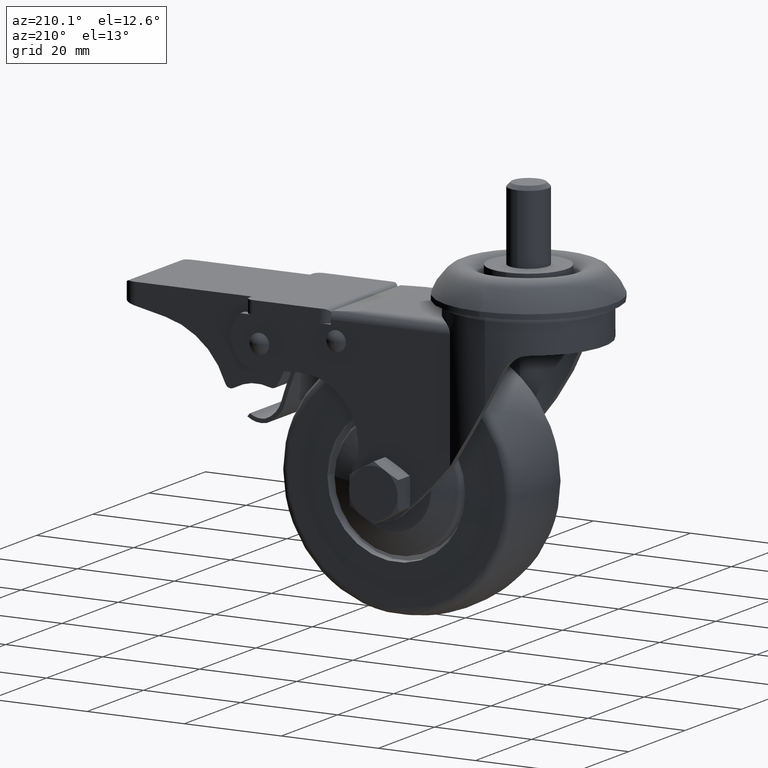
[diagram: clean part render]
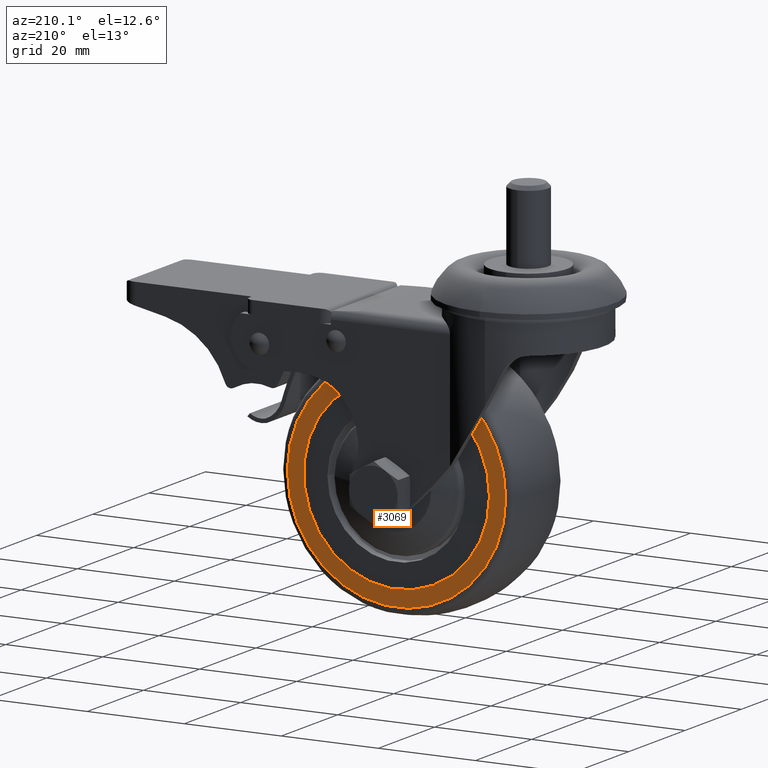
[diagram: same view with one face highlighted and labeled with its STEP entity id]
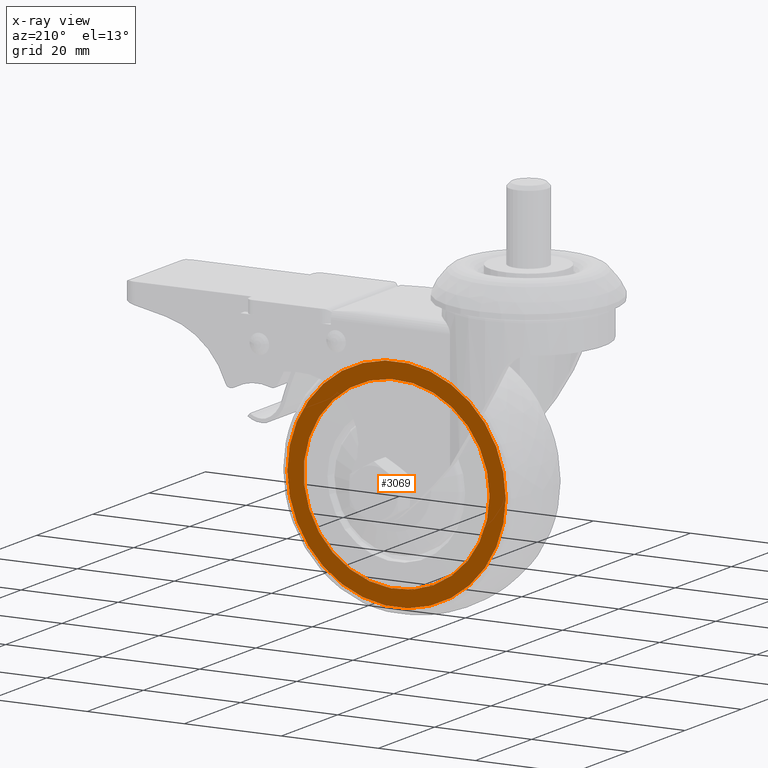
[diagram: x-ray of the same camera — body ghosted, the highlighted face saturated]
A machine part, auxiliary view. The second image highlights one B-rep face of the part: STEP entity #3069.
The next image is the same camera in x-ray: the body ghosted, the highlighted face saturated — about 0% of this face is hidden behind the body in this view.
In plain terms, the highlighted planar face has unit normal (-0.0001, 1, 0).
Its self-contained STEP definition (entity closure, byte-faithful):
#552=FACE_BOUND('',#1024,.T.);
#622=PLANE('',#3670);
#803=FACE_OUTER_BOUND('',#1023,.T.);
#1023=EDGE_LOOP('',(#2813));
#1024=EDGE_LOOP('',(#2814));
#1220=CIRCLE('',#3669,19.1499999999996);
#1221=CIRCLE('',#3671,22.495454169735);
#1547=VERTEX_POINT('',#5847);
#1548=VERTEX_POINT('',#5851);
#1969=EDGE_CURVE('',#1547,#1547,#1220,.T.);
#1971=EDGE_CURVE('',#1548,#1548,#1221,.T.);
#2813=ORIENTED_EDGE('',*,*,#1971,.T.);
#2814=ORIENTED_EDGE('',*,*,#1969,.F.);
#3069=ADVANCED_FACE('',(#803,#552),#622,.T.);
#3669=AXIS2_PLACEMENT_3D('',#5848,#4605,#4606);
#3670=AXIS2_PLACEMENT_3D('',#5850,#4608,#4609);
#3671=AXIS2_PLACEMENT_3D('',#5852,#4610,#4611);
#4605=DIRECTION('center_axis',(1.,0.,0.));
#4606=DIRECTION('ref_axis',(0.,0.,-1.));
#4608=DIRECTION('center_axis',(1.,0.,0.));
#4609=DIRECTION('ref_axis',(0.,0.,-1.));
#4610=DIRECTION('center_axis',(1.,0.,0.));
#4611=DIRECTION('ref_axis',(0.,0.,-1.));
#5847=CARTESIAN_POINT('',(19.5,0.,-19.1499999999996));
#5848=CARTESIAN_POINT('Origin',(19.5,0.,0.));
#5850=CARTESIAN_POINT('Origin',(19.5,19.1499999999996,0.));
#5851=CARTESIAN_POINT('',(19.5,-2.75489859443319E-15,22.495454169735));
#5852=CARTESIAN_POINT('Origin',(19.5,0.,0.));